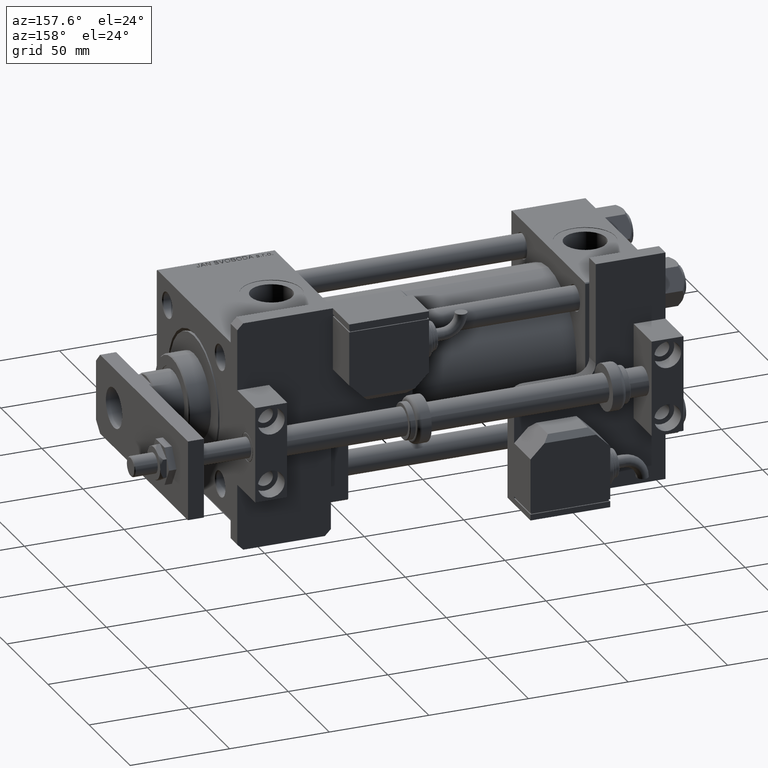
[diagram: clean part render]
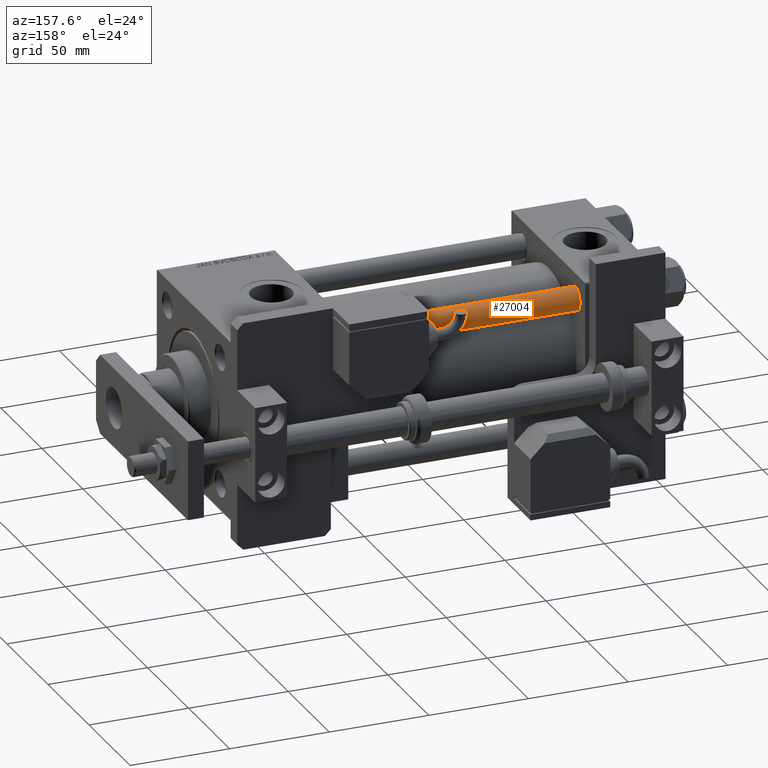
[diagram: same view with one face highlighted and labeled with its STEP entity id]
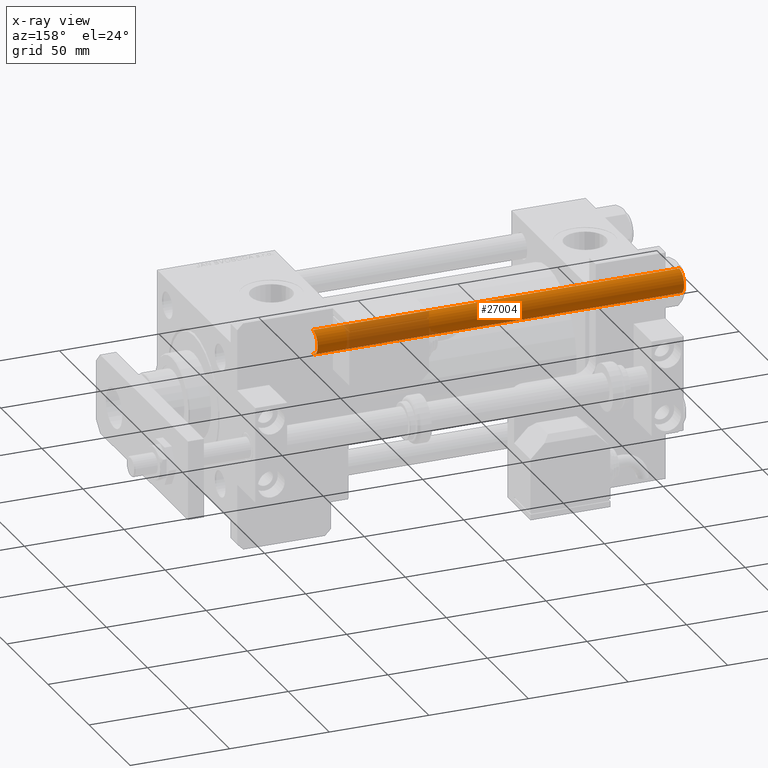
[diagram: x-ray of the same camera — body ghosted, the highlighted face saturated]
A machine part, auxiliary view. The second image highlights one B-rep face of the part: STEP entity #27004.
The next image is the same camera in x-ray: the body ghosted, the highlighted face saturated — about 23% of this face is hidden behind the body in this view.
In plain terms, the highlighted cylindrical surface (edge-blend (fillet) strip) has radius 6 mm, axis along (-1, -0, 0).
Its self-contained STEP definition (entity closure, byte-faithful):
#2108 = CARTESIAN_POINT ( 'NONE',  ( 0.000000000000000000, 0.000000000000000000, 185.0000000000000000 ) ) ;
#7085 = FACE_OUTER_BOUND ( 'NONE', #16296, .T. ) ;
#7306 = LINE ( 'NONE', #25476, #46665 ) ;
#8545 = CARTESIAN_POINT ( 'NONE',  ( 0.000000000000000000, 0.000000000000000000, 184.5000000000000000 ) ) ;
#14928 = CARTESIAN_POINT ( 'NONE',  ( 6.000000000000000888, 7.347880794884120722E-16, 184.5000000000000000 ) ) ;
#14997 = CARTESIAN_POINT ( 'NONE',  ( -6.000000000000000888, 0.000000000000000000, 0.5000000000000281997 ) ) ;
#15429 = EDGE_CURVE ( 'NONE', #47598, #19432, #40045, .T. ) ;
#16068 = ORIENTED_EDGE ( 'NONE', *, *, #44967, .F. ) ;
#16296 = EDGE_LOOP ( 'NONE', ( #44749, #25152, #37346, #16068 ) ) ;
#16631 = VERTEX_POINT ( 'NONE', #24294 ) ;
#18784 = LINE ( 'NONE', #36699, #45430 ) ;
#19432 = VERTEX_POINT ( 'NONE', #14928 ) ;
#22887 = DIRECTION ( 'NONE',  ( 1.000000000000000000, 0.000000000000000000, 0.000000000000000000 ) ) ;
#24294 = CARTESIAN_POINT ( 'NONE',  ( 6.000000000000000888, 7.347880794884120722E-16, 0.5000000000000281997 ) ) ;
#25152 = ORIENTED_EDGE ( 'NONE', *, *, #54179, .T. ) ;
#25476 = CARTESIAN_POINT ( 'NONE',  ( 6.000000000000000888, 7.347880794884120722E-16, 185.0000000000000000 ) ) ;
#26045 = DIRECTION ( 'NONE',  ( -0.000000000000000000, -0.000000000000000000, -1.000000000000000000 ) ) ;
#27004 = ADVANCED_FACE ( 'NONE', ( #7085 ), #33509, .T. ) ;
#29627 = EDGE_CURVE ( 'NONE', #16631, #48671, #44280, .T. ) ;
#31987 = DIRECTION ( 'NONE',  ( 0.000000000000000000, 0.000000000000000000, -1.000000000000000000 ) ) ;
#33509 = CYLINDRICAL_SURFACE ( 'NONE', #47894, 6.000000000000000888 ) ;
#33795 = DIRECTION ( 'NONE',  ( -1.000000000000000000, 0.000000000000000000, 0.000000000000000000 ) ) ;
#33997 = AXIS2_PLACEMENT_3D ( 'NONE', #53259, #56794, #47988 ) ;
#36699 = CARTESIAN_POINT ( 'NONE',  ( -6.000000000000000888, 0.000000000000000000, 185.0000000000000000 ) ) ;
#37346 = ORIENTED_EDGE ( 'NONE', *, *, #29627, .T. ) ;
#40045 = CIRCLE ( 'NONE', #49400, 6.000000000000000888 ) ;
#42827 = CARTESIAN_POINT ( 'NONE',  ( -6.000000000000000888, 0.000000000000000000, 184.5000000000000000 ) ) ;
#44280 = CIRCLE ( 'NONE', #33997, 6.000000000000000888 ) ;
#44749 = ORIENTED_EDGE ( 'NONE', *, *, #15429, .T. ) ;
#44967 = EDGE_CURVE ( 'NONE', #47598, #48671, #18784, .T. ) ;
#45430 = VECTOR ( 'NONE', #54597, 1000.000000000000000 ) ;
#46665 = VECTOR ( 'NONE', #26045, 1000.000000000000000 ) ;
#47598 = VERTEX_POINT ( 'NONE', #42827 ) ;
#47894 = AXIS2_PLACEMENT_3D ( 'NONE', #2108, #56666, #33795 ) ;
#47988 = DIRECTION ( 'NONE',  ( 1.000000000000000000, 0.000000000000000000, 0.000000000000000000 ) ) ;
#48671 = VERTEX_POINT ( 'NONE', #14997 ) ;
#49400 = AXIS2_PLACEMENT_3D ( 'NONE', #8545, #31987, #22887 ) ;
#53259 = CARTESIAN_POINT ( 'NONE',  ( 0.000000000000000000, 0.000000000000000000, 0.5000000000000281997 ) ) ;
#54179 = EDGE_CURVE ( 'NONE', #19432, #16631, #7306, .T. ) ;
#54597 = DIRECTION ( 'NONE',  ( -0.000000000000000000, -0.000000000000000000, -1.000000000000000000 ) ) ;
#56666 = DIRECTION ( 'NONE',  ( -0.000000000000000000, -0.000000000000000000, -1.000000000000000000 ) ) ;
#56794 = DIRECTION ( 'NONE',  ( -0.000000000000000000, -0.000000000000000000, 1.000000000000000000 ) ) ;